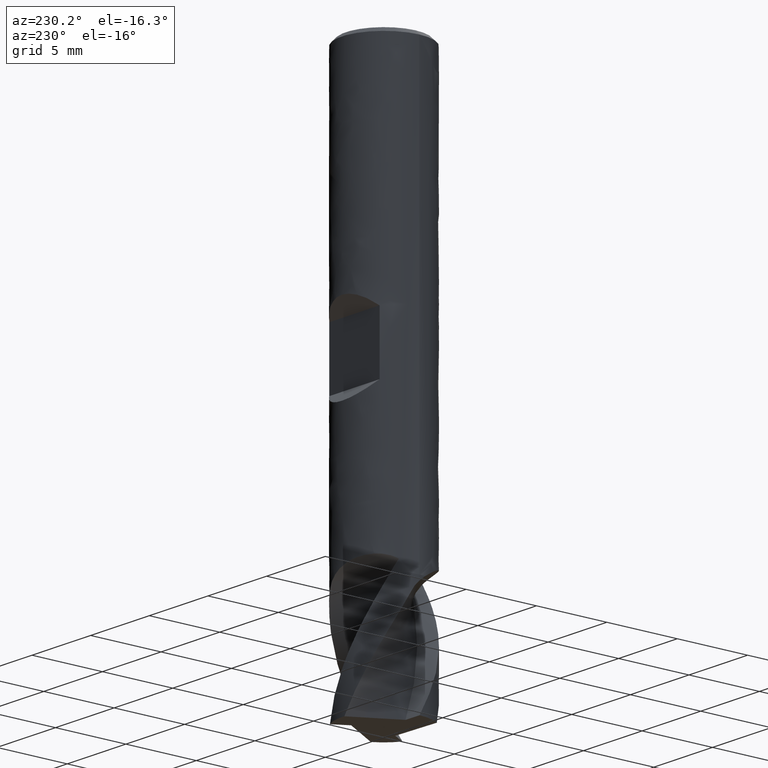
[diagram: clean part render]
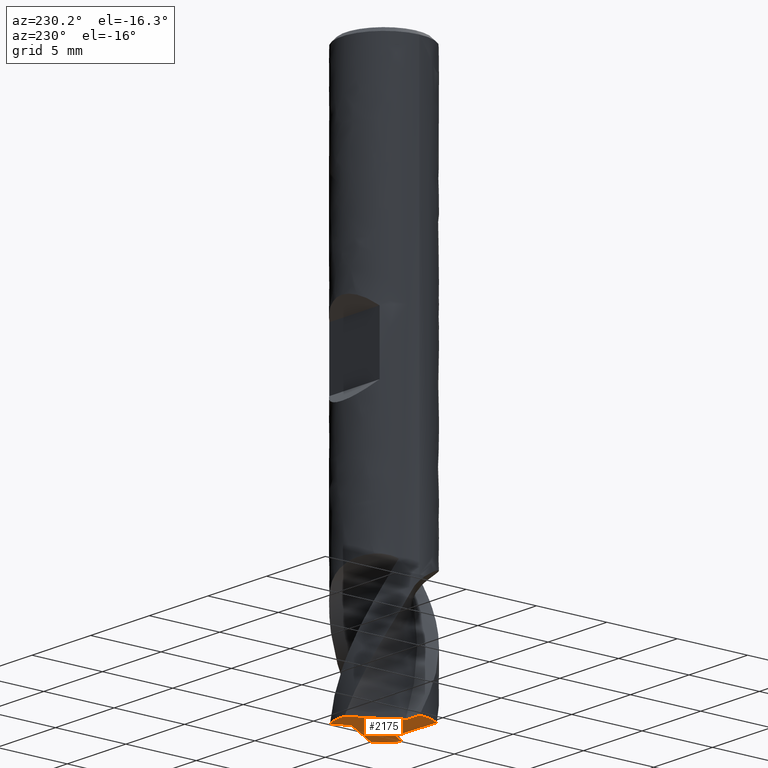
[diagram: same view with one face highlighted and labeled with its STEP entity id]
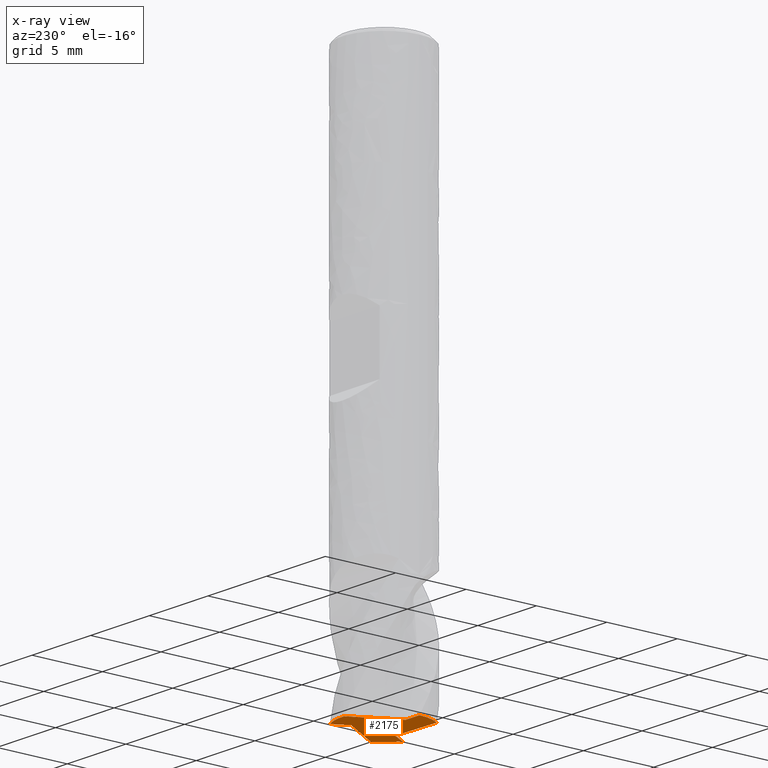
[diagram: x-ray of the same camera — body ghosted, the highlighted face saturated]
A machine part, auxiliary view. The second image highlights one B-rep face of the part: STEP entity #2175.
The next image is the same camera in x-ray: the body ghosted, the highlighted face saturated — about 0% of this face is hidden behind the body in this view.
In plain terms, the highlighted planar face has unit normal (0, 0, -1).
Its self-contained STEP definition (entity closure, byte-faithful):
#1064 = VERTEX_POINT('', #1065);
#1065 = CARTESIAN_POINT('', (1.47517908033406, 2.61224935275038, -39.));
#1168 = EDGE_CURVE('', #1169, #1064, #1171, .T.);
#1169 = VERTEX_POINT('', #1170);
#1170 = CARTESIAN_POINT('', (-0.212771887173466, 2.99244517477408, -39.));
#1171 = CIRCLE('', #1172, 3.);
#1172 = AXIS2_PLACEMENT_3D('', #1173, #1174, #1175);
#1173 = CARTESIAN_POINT('', (1.46226578809531E-31, 2.38806125833734E-15, -39.));
#1174 = DIRECTION('', (3.74939945665464E-33, 6.12323399573677E-17, -1.));
#1175 = DIRECTION('', (-1., 6.12323399573677E-17, 0.));
#1300 = VERTEX_POINT('', #1301);
#1301 = CARTESIAN_POINT('', (0.893725716362672, 1.5826108539826, -39.));
#1321 = EDGE_CURVE('', #1300, #1064, #1322, .T.);
#1322 = LINE('', #1323, #1324);
#1323 = CARTESIAN_POINT('', (0.893725716362672, 1.5826108539826, -39.));
#1324 = VECTOR('', #1325, 1.18247344689782);
#1325 = DIRECTION('', (0.58145336397139, 1.02963849876777, 0.));
#1368 = VERTEX_POINT('', #1369);
#1369 = CARTESIAN_POINT('', (2.69791948437325, -1.31195672788366, -39.));
#1481 = EDGE_CURVE('', #1368, #1300, #1482, .T.);
#1482 = LINE('', #1483, #1484);
#1483 = CARTESIAN_POINT('', (2.69791948437325, -1.31195672788366, -39.));
#1484 = VECTOR('', #1485, 3.41081172721674);
#1485 = DIRECTION('', (-1.80419376801057, 2.89456758186626, -7.105427357601E-15));
#1528 = VERTEX_POINT('', #1529);
#1529 = CARTESIAN_POINT('', (1.52468476033425, -2.58366723507585, -39.));
#1629 = EDGE_CURVE('', #1368, #1528, #1630, .T.);
#1630 = CIRCLE('', #1631, 3.);
#1631 = AXIS2_PLACEMENT_3D('', #1632, #1633, #1634);
#1632 = CARTESIAN_POINT('', (1.46226578809531E-31, 2.38806125833734E-15, -39.));
#1633 = DIRECTION('', (3.74939945665464E-33, 6.12323399573677E-17, -1.));
#1634 = DIRECTION('', (-1., 6.12323399573677E-17, 0.));
#1661 = VERTEX_POINT('', #1662);
#1662 = CARTESIAN_POINT('', (0.923718345672581, -1.56529460137682, -39.));
#1682 = EDGE_CURVE('', #1661, #1528, #1683, .T.);
#1683 = LINE('', #1684, #1685);
#1684 = CARTESIAN_POINT('', (0.923718345672581, -1.56529460137682, -39.));
#1685 = VECTOR('', #1686, 1.18247344689782);
#1686 = DIRECTION('', (0.600966414661671, -1.01837263369903, 0.));
#1729 = VERTEX_POINT('', #1730);
#1730 = CARTESIAN_POINT('', (-2.48514759719978, -1.68048844689041, -39.));
#1848 = EDGE_CURVE('', #1729, #1661, #1849, .T.);
#1849 = LINE('', #1850, #1851);
#1850 = CARTESIAN_POINT('', (-2.48514759719978, -1.68048844689041, -39.));
#1851 = VECTOR('', #1852, 3.41081172721675);
#1852 = DIRECTION('', (3.40886594287236, 0.115193845513597, 0.));
#1895 = VERTEX_POINT('', #1896);
#1896 = CARTESIAN_POINT('', (-2.99986384066831, -0.0285821176745243, -39.));
#1987 = EDGE_CURVE('', #1729, #1895, #1988, .T.);
#1988 = CIRCLE('', #1989, 3.);
#1989 = AXIS2_PLACEMENT_3D('', #1990, #1991, #1992);
#1990 = CARTESIAN_POINT('', (1.46226578809531E-31, 2.38806125833734E-15, -39.));
#1991 = DIRECTION('', (3.74939945665464E-33, 6.12323399573677E-17, -1.));
#1992 = DIRECTION('', (-1., 6.12323399573677E-17, 0.));
#2019 = VERTEX_POINT('', #2020);
#2020 = CARTESIAN_POINT('', (-1.81744406203525, -0.0173162526057783, -39.));
#2040 = EDGE_CURVE('', #2019, #1895, #2041, .T.);
#2041 = LINE('', #2042, #2043);
#2042 = CARTESIAN_POINT('', (-1.81744406203525, -0.0173162526057783, -39.));
#2043 = VECTOR('', #2044, 1.18247344689782);
#2044 = DIRECTION('', (-1.18241977863306, -0.0112658650687474, 0.));
#2109 = EDGE_CURVE('', #2019, #1169, #2110, .T.);
#2110 = LINE('', #2111, #2112);
#2111 = CARTESIAN_POINT('', (-1.81744406203525, -0.0173162526057783, -39.));
#2112 = VECTOR('', #2113, 3.41081172721675);
#2113 = DIRECTION('', (1.60467217486179, 3.00976142737986, 0.));
#2175 = ADVANCED_FACE('', (#2176), #2187, .T.);
#2176 = FACE_OUTER_BOUND('', #2177, .T.);
#2177 = EDGE_LOOP('', (#2178, #2179, #2180, #2181, #2182, #2183, #2184, #2185, #2186));
#2178 = ORIENTED_EDGE('', *, *, #2040, .F.);
#2179 = ORIENTED_EDGE('', *, *, #2109, .T.);
#2180 = ORIENTED_EDGE('', *, *, #1168, .T.);
#2181 = ORIENTED_EDGE('', *, *, #1321, .F.);
#2182 = ORIENTED_EDGE('', *, *, #1481, .F.);
#2183 = ORIENTED_EDGE('', *, *, #1629, .T.);
#2184 = ORIENTED_EDGE('', *, *, #1682, .F.);
#2185 = ORIENTED_EDGE('', *, *, #1848, .F.);
#2186 = ORIENTED_EDGE('', *, *, #1987, .T.);
#2187 = PLANE('', #2188);
#2188 = AXIS2_PLACEMENT_3D('', #2189, #2190, #2191);
#2189 = CARTESIAN_POINT('', (4.66690475583121, -4.66690475583121, -39.));
#2190 = DIRECTION('', (0., 0., -1.));
#2191 = DIRECTION('', (-1., 0., 0.));